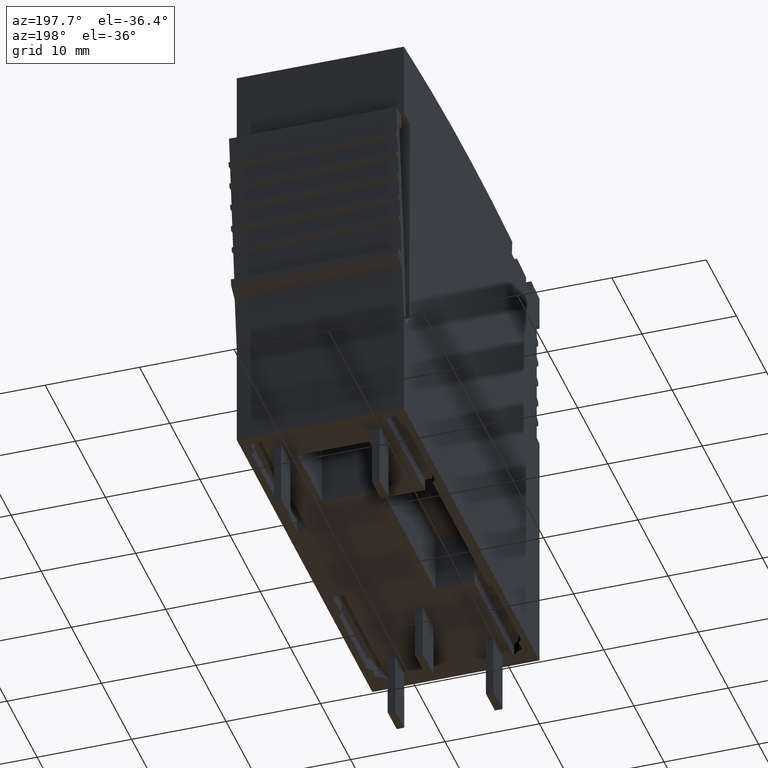
[diagram: clean part render]
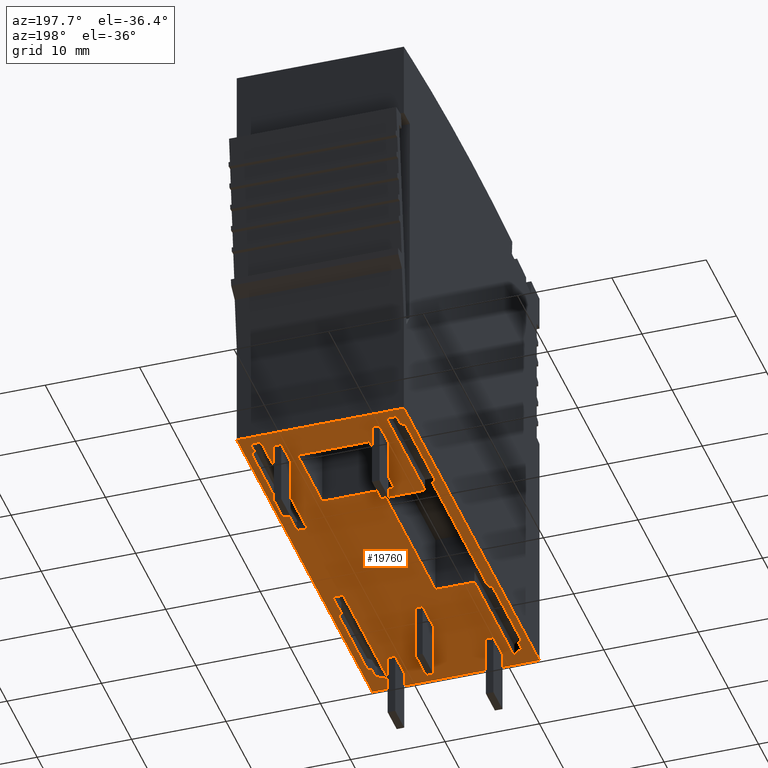
[diagram: same view with one face highlighted and labeled with its STEP entity id]
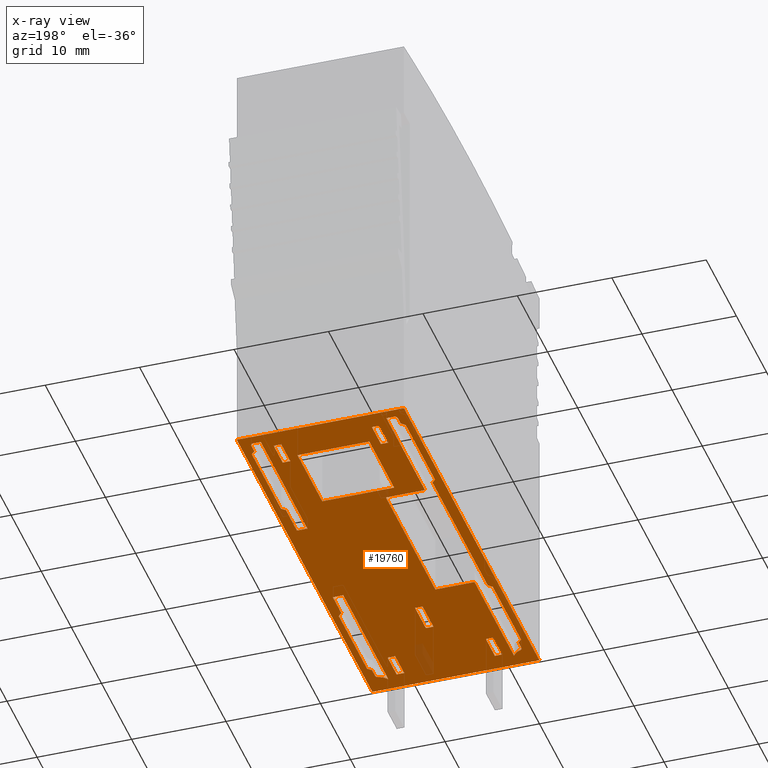
[diagram: x-ray of the same camera — body ghosted, the highlighted face saturated]
A machine part, auxiliary view. The second image highlights one B-rep face of the part: STEP entity #19760.
The next image is the same camera in x-ray: the body ghosted, the highlighted face saturated — about 2% of this face is hidden behind the body in this view.
In plain terms, the highlighted planar face has unit normal (-0, -0, 1).
Its self-contained STEP definition (entity closure, byte-faithful):
#6530=CARTESIAN_POINT('',(166.67605484043,55.3590821823537,
-2.14452701978148));
#6540=VERTEX_POINT('',#6530);
#6570=CARTESIAN_POINT('',(111.23636600137,55.3590821823537,
-2.1445270173443));
#6580=DIRECTION('',(-1.,8.6579770562267E-28,4.39608349722675E-11));
#6590=VECTOR('',#6580,1.);
#6600=LINE('',#6570,#6590);
#6610=CARTESIAN_POINT('',(121.676054891483,55.3590821823537,
-2.14452701780324));
#6620=VERTEX_POINT('',#6610);
#6630=EDGE_CURVE('',#6540,#6620,#6600,.T.);
#14040=CARTESIAN_POINT('',(121.676054890705,55.3590821839099,
-19.8445270201318));
#14050=VERTEX_POINT('',#14040);
#14080=CARTESIAN_POINT('',(111.23636600137,55.3590821839099,
-19.8445270201318));
#14090=DIRECTION('',(1.,-3.86513163182949E-21,-3.76698338563895E-27));
#14100=VECTOR('',#14090,1.);
#14110=LINE('',#14080,#14100);
#14120=CARTESIAN_POINT('',(166.676054839652,55.3590821839099,
-19.8445270201318));
#14130=VERTEX_POINT('',#14120);
#14140=EDGE_CURVE('',#14050,#14130,#14110,.T.);
#14390=CARTESIAN_POINT('',(121.676055138238,55.3590821833076,
-12.9945270190916));
#14400=DIRECTION('',(4.39608349722675E-11,-8.79221417989464E-11,1.));
#14410=VECTOR('',#14400,1.);
#14420=LINE('',#14390,#14410);
#14430=EDGE_CURVE('',#14050,#6620,#14420,.T.);
#14560=CARTESIAN_POINT('',(165.963061093352,55.359082183228,
-12.0886929430308));
#14570=DIRECTION('',(3.86513163182949E-21,1.,8.79221417989464E-11));
#14580=DIRECTION('',(1.,-3.86513163182949E-21,-3.76698338563895E-27));
#14590=AXIS2_PLACEMENT_3D('',#14560,#14570,#14580);
#14600=PLANE('',#14590);
#14610=CARTESIAN_POINT('',(111.23636600137,55.3590821836169,
-16.5945270090846));
#14620=DIRECTION('',(1.,-7.69326545249514E-21,4.39608349722675E-11));
#14630=VECTOR('',#14620,1.);
#14640=LINE('',#14610,#14630);
#14650=CARTESIAN_POINT('',(123.776089819323,55.3590821836242,
-16.5945270085334));
#14660=VERTEX_POINT('',#14650);
#14670=CARTESIAN_POINT('',(126.776089819323,55.3590821836242,
-16.5945270084015));
#14680=VERTEX_POINT('',#14670);
#14690=EDGE_CURVE('',#14660,#14680,#14640,.T.);
#14700=ORIENTED_EDGE('',*,*,#14690,.F.);
#14710=CARTESIAN_POINT('',(126.776089819323,55.3590821833004,
-12.9945270190916));
#14720=DIRECTION('',(3.7666382607192E-27,-8.79221417989464E-11,1.));
#14730=VECTOR('',#14720,1.);
#14740=LINE('',#14710,#14730);
#14750=CARTESIAN_POINT('',(126.776089819323,55.3590821835538,
-15.7945270082354));
#14760=VERTEX_POINT('',#14750);
#14770=EDGE_CURVE('',#14680,#14760,#14740,.T.);
#14780=ORIENTED_EDGE('',*,*,#14770,.F.);
#14790=CARTESIAN_POINT('',(111.23636600137,55.3590821835466,
-15.7945270089185));
#14800=DIRECTION('',(-1.,7.69326545249514E-21,-4.39608349722675E-11));
#14810=VECTOR('',#14800,1.);
#14820=LINE('',#14790,#14810);
#14830=CARTESIAN_POINT('',(123.776089819323,55.3590821835538,
-15.7945270083673));
#14840=VERTEX_POINT('',#14830);
#14850=EDGE_CURVE('',#14760,#14840,#14820,.T.);
#14860=ORIENTED_EDGE('',*,*,#14850,.F.);
#14870=CARTESIAN_POINT('',(123.776089819323,55.3590821833004,
-12.9945270190916));
#14880=DIRECTION('',(3.7666382607192E-27,-8.79221417989464E-11,1.));
#14890=VECTOR('',#14880,1.);
#14900=LINE('',#14870,#14890);
#14910=EDGE_CURVE('',#14660,#14840,#14900,.T.);
#14920=ORIENTED_EDGE('',*,*,#14910,.T.);
#14930=EDGE_LOOP('',(#14920,#14860,#14780,#14700));
#14940=FACE_BOUND('',#14930,.T.);
#14950=CARTESIAN_POINT('',(144.349607348658,55.3590821833076,
-12.9945270190916));
#14960=DIRECTION('',(-0.707106781155467,-6.21703426824798E-11,
0.707106781217628));
#14970=VECTOR('',#14960,1.);
#14980=LINE('',#14950,#14970);
#14990=CARTESIAN_POINT('',(134.599607347522,55.3590821824504,
-3.24452701709825));
#15000=VERTEX_POINT('',#14990);
#15010=CARTESIAN_POINT('',(134.199607289225,55.3590821824152,
-2.84452695876626));
#15020=VERTEX_POINT('',#15010);
#15030=EDGE_CURVE('',#15000,#15020,#14980,.T.);
#15040=ORIENTED_EDGE('',*,*,#15030,.F.);
#15050=CARTESIAN_POINT('',(111.23636600137,55.3590821824152,
-2.84452695775677));
#15060=DIRECTION('',(-1.,5.74645701506574E-27,4.39607794611163E-11));
#15070=VECTOR('',#15060,1.);
#15080=LINE('',#15050,#15070);
#15090=CARTESIAN_POINT('',(124.47605503883,55.3590821824152,
-2.8445269583388));
#15100=VERTEX_POINT('',#15090);
#15110=EDGE_CURVE('',#15020,#15100,#15080,.T.);
#15120=ORIENTED_EDGE('',*,*,#15110,.F.);
#15130=CARTESIAN_POINT('',(111.23636600137,55.3590821835793,
-16.0842159946352));
#15140=DIRECTION('',(-0.707106781217637,6.21703426824798E-11,
-0.707106781155458));
#15150=VECTOR('',#15140,1.);
#15160=LINE('',#15130,#15150);
#15170=CARTESIAN_POINT('',(124.076054980498,55.3590821824504,
-3.24452701663565));
#15180=VERTEX_POINT('',#15170);
#15190=EDGE_CURVE('',#15100,#15180,#15160,.T.);
#15200=ORIENTED_EDGE('',*,*,#15190,.F.);
#15210=CARTESIAN_POINT('',(111.23636600137,55.3590821824504,
-3.2445270160712));
#15220=DIRECTION('',(-1.,-9.40062582959765E-26,4.39619140185016E-11));
#15230=VECTOR('',#15220,1.);
#15240=LINE('',#15210,#15230);
#15250=CARTESIAN_POINT('',(123.07605498092,55.3590821824504,
-3.2445270165917));
#15260=VERTEX_POINT('',#15250);
#15270=EDGE_CURVE('',#15180,#15260,#15240,.T.);
#15280=ORIENTED_EDGE('',*,*,#15270,.F.);
#15290=CARTESIAN_POINT('',(123.076054980907,55.3590821824768,
-3.5445270164652));
#15300=DIRECTION('',(3.86513005014181E-21,1.,8.79221417989464E-11));
#15310=DIRECTION('',(1.,-5.74645701506574E-27,-4.39607794611163E-11));
#15320=AXIS2_PLACEMENT_3D('',#15290,#15300,#15310);
#15330=CIRCLE('',#15320,0.299999999873505);
#15340=CARTESIAN_POINT('',(122.776054981033,55.3590821824768,
-3.54452701645201));
#15350=VERTEX_POINT('',#15340);
#15360=EDGE_CURVE('',#15350,#15260,#15330,.T.);
#15370=ORIENTED_EDGE('',*,*,#15360,.T.);
#15380=CARTESIAN_POINT('',(122.776054980618,55.3590821833076,
-12.9945270190916));
#15390=DIRECTION('',(-4.39607794611163E-11,8.79221417989464E-11,-1.));
#15400=VECTOR('',#15390,1.);
#15410=LINE('',#15380,#15400);
#15420=CARTESIAN_POINT('',(122.776054980998,55.3590821825471,
-4.34452701581131));
#15430=VERTEX_POINT('',#15420);
#15440=EDGE_CURVE('',#15350,#15430,#15410,.T.);
#15450=ORIENTED_EDGE('',*,*,#15440,.F.);
#15460=CARTESIAN_POINT('',(111.23636600137,55.3590821825471,
-4.34452701530403));
#15470=DIRECTION('',(1.,-7.15694028403487E-26,-4.39600308107254E-11));
#15480=VECTOR('',#15470,1.);
#15490=LINE('',#15460,#15480);
#15500=CARTESIAN_POINT('',(135.603098670056,55.3590821825471,
-4.34452701637519));
#15510=VERTEX_POINT('',#15500);
#15520=EDGE_CURVE('',#15430,#15510,#15490,.T.);
#15530=ORIENTED_EDGE('',*,*,#15520,.F.);
#15540=CARTESIAN_POINT('',(135.603098669676,55.3590821833076,
-12.9945270190916));
#15550=DIRECTION('',(-4.39607794611163E-11,8.79221417989464E-11,-1.));
#15560=VECTOR('',#15550,1.);
#15570=LINE('',#15540,#15560);
#15580=CARTESIAN_POINT('',(135.603098669874,55.3590821829114,
-8.48766681348027));
#15590=VERTEX_POINT('',#15580);
#15600=EDGE_CURVE('',#15510,#15590,#15570,.T.);
#15610=ORIENTED_EDGE('',*,*,#15600,.F.);
#15620=CARTESIAN_POINT('',(111.23636600137,55.3590821829114,
-8.48766681240909));
#15630=DIRECTION('',(1.,-5.26471125359321E-27,-4.39607849403477E-11));
#15640=VECTOR('',#15630,1.);
#15650=LINE('',#15620,#15640);
#15660=CARTESIAN_POINT('',(152.008433673002,55.3590821829114,
-8.48766681420146));
#15670=VERTEX_POINT('',#15660);
#15680=EDGE_CURVE('',#15590,#15670,#15650,.T.);
#15690=ORIENTED_EDGE('',*,*,#15680,.F.);
#15700=CARTESIAN_POINT('',(152.008433672804,55.3590821833076,
-12.9945270190916));
#15710=DIRECTION('',(4.39607794611163E-11,-8.79221417989464E-11,1.));
#15720=VECTOR('',#15710,1.);
#15730=LINE('',#15700,#15720);
#15740=CARTESIAN_POINT('',(152.008433673185,55.3590821825471,
-4.34452701709637));
#15750=VERTEX_POINT('',#15740);
#15760=EDGE_CURVE('',#15670,#15750,#15730,.T.);
#15770=ORIENTED_EDGE('',*,*,#15760,.F.);
#15780=CARTESIAN_POINT('',(111.23636600137,55.3590821825471,
-4.34452701530403));
#15790=DIRECTION('',(1.,-7.15694028403487E-26,-4.39600308107254E-11));
#15800=VECTOR('',#15790,1.);
#15810=LINE('',#15780,#15800);
#15820=CARTESIAN_POINT('',(165.152221556358,55.3590821825471,
-4.34452701767417));
#15830=VERTEX_POINT('',#15820);
#15840=EDGE_CURVE('',#15750,#15830,#15810,.T.);
#15850=ORIENTED_EDGE('',*,*,#15840,.F.);
#15860=CARTESIAN_POINT('',(165.84908955327,55.3590821824328,
-3.04452702034931));
#15870=DIRECTION('',(3.86513005014181E-21,1.,8.79221417989464E-11));
#15880=DIRECTION('',(4.39607794611163E-11,-8.79221417989464E-11,1.));
#15890=AXIS2_PLACEMENT_3D('',#15860,#15870,#15880);
#15900=CIRCLE('',#15890,1.47499999937807);
#15910=CARTESIAN_POINT('',(164.433819048503,55.3590821824694,
-3.46001997636847));
#15920=VERTEX_POINT('',#15910);
#15930=EDGE_CURVE('',#15830,#15920,#15900,.T.);
#15940=ORIENTED_EDGE('',*,*,#15930,.F.);
#15950=CARTESIAN_POINT('',(164.145967420415,55.3590821824768,
-3.54452701827067));
#15960=DIRECTION('',(3.86513005014181E-21,1.,8.79221417989464E-11));
#15970=DIRECTION('',(1.,-5.74645701506574E-27,-4.39607794611163E-11));
#15980=AXIS2_PLACEMENT_3D('',#15950,#15960,#15970);
#15990=CIRCLE('',#15980,0.299999999873505);
#16000=CARTESIAN_POINT('',(164.145967420428,55.3590821824504,
-3.24452701839717));
#16010=VERTEX_POINT('',#16000);
#16020=EDGE_CURVE('',#16010,#15920,#15990,.T.);
#16030=ORIENTED_EDGE('',*,*,#16020,.T.);
#16040=CARTESIAN_POINT('',(111.23636600137,55.3590821824504,
-3.24452701607117));
#16050=DIRECTION('',(-1.,-9.40062582959765E-26,4.39619140185016E-11));
#16060=VECTOR('',#16050,1.);
#16070=LINE('',#16040,#16060);
#16080=CARTESIAN_POINT('',(163.145967420847,55.3590821824504,
-3.24452701835321));
#16090=VERTEX_POINT('',#16080);
#16100=EDGE_CURVE('',#16010,#16090,#16070,.T.);
#16110=ORIENTED_EDGE('',*,*,#16100,.F.);
#16120=CARTESIAN_POINT('',(172.895967420728,55.3590821833076,
-12.9945270190916));
#16130=DIRECTION('',(-0.707106781155467,-6.21703426824798E-11,
0.707106781217628));
#16140=VECTOR('',#16130,1.);
#16150=LINE('',#16120,#16140);
#16160=CARTESIAN_POINT('',(162.745967421033,55.3590821824152,
-2.84452701850423));
#16170=VERTEX_POINT('',#16160);
#16180=EDGE_CURVE('',#16090,#16170,#16150,.T.);
#16190=ORIENTED_EDGE('',*,*,#16180,.F.);
#16200=CARTESIAN_POINT('',(111.23636600137,55.3590821824152,
-2.84452701623983));
#16210=DIRECTION('',(-1.,5.74645701506574E-27,4.39607794611163E-11));
#16220=VECTOR('',#16210,1.);
#16230=LINE('',#16200,#16220);
#16240=CARTESIAN_POINT('',(153.351243109778,55.3590821824152,
-2.84452701809123));
#16250=VERTEX_POINT('',#16240);
#16260=EDGE_CURVE('',#16170,#16250,#16230,.T.);
#16270=ORIENTED_EDGE('',*,*,#16260,.F.);
#16280=CARTESIAN_POINT('',(111.23636600137,55.3590821861181,
-44.9594041227958));
#16290=DIRECTION('',(-0.707106781217637,6.21703426824798E-11,
-0.707106781155458));
#16300=VECTOR('',#16290,1.);
#16310=LINE('',#16280,#16300);
#16320=CARTESIAN_POINT('',(152.951243109929,55.3590821824504,
-3.244527017905));
#16330=VERTEX_POINT('',#16320);
#16340=EDGE_CURVE('',#16250,#16330,#16310,.T.);
#16350=ORIENTED_EDGE('',*,*,#16340,.F.);
#16360=CARTESIAN_POINT('',(111.23636600137,55.3590821824504,
-3.24452701607117));
#16370=DIRECTION('',(-1.,-9.40062582959765E-26,4.39619140185016E-11));
#16380=VECTOR('',#16370,1.);
#16390=LINE('',#16360,#16380);
#16400=EDGE_CURVE('',#16330,#15000,#16390,.T.);
#16410=ORIENTED_EDGE('',*,*,#16400,.F.);
#16420=EDGE_LOOP('',(#16410,#16350,#16270,#16190,#16110,#16030,#15940,
#15850,#15770,#15690,#15610,#15530,#15450,#15370,#15280,#15200,#15120,
#15040));
#16430=FACE_BOUND('',#16420,.T.);
#16440=CARTESIAN_POINT('',(111.23636600137,55.3590821838132,
-18.7445270095439));
#16450=DIRECTION('',(1.,-2.69811504632582E-23,-4.36539693282612E-11));
#16460=VECTOR('',#16450,1.);
#16470=LINE('',#16440,#16460);
#16480=CARTESIAN_POINT('',(150.126054642121,55.3590821838132,
-18.7445270112416));
#16490=VERTEX_POINT('',#16480);
#16500=CARTESIAN_POINT('',(152.951203198138,55.3590821838132,
-18.744527011365));
#16510=VERTEX_POINT('',#16500);
#16520=EDGE_CURVE('',#16490,#16510,#16470,.T.);
#16530=ORIENTED_EDGE('',*,*,#16520,.F.);
#16540=CARTESIAN_POINT('',(147.20120320637,55.3590821833076,
-12.9945270190916));
#16550=DIRECTION('',(0.707106781155467,6.21703426824798E-11,
-0.707106781217628));
#16560=VECTOR('',#16550,1.);
#16570=LINE('',#16540,#16560);
#16580=CARTESIAN_POINT('',(153.351203197956,55.3590821838484,
-19.1445270112183));
#16590=VERTEX_POINT('',#16580);
#16600=EDGE_CURVE('',#16510,#16590,#16570,.T.);
#16610=ORIENTED_EDGE('',*,*,#16600,.F.);
#16620=CARTESIAN_POINT('',(111.23636600137,55.3590821838484,
-19.1445270093669));
#16630=DIRECTION('',(1.,-5.74645701506574E-27,-4.39607794611163E-11));
#16640=VECTOR('',#16630,1.);
#16650=LINE('',#16620,#16640);
#16660=CARTESIAN_POINT('',(162.745967420317,55.3590821838484,
-19.1445270116313));
#16670=VERTEX_POINT('',#16660);
#16680=EDGE_CURVE('',#16590,#16670,#16650,.T.);
#16690=ORIENTED_EDGE('',*,*,#16680,.F.);
#16700=CARTESIAN_POINT('',(111.23636600137,55.3590821883772,
-70.6541284260488));
#16710=DIRECTION('',(0.707106781217637,-6.21703426824798E-11,
0.707106781155458));
#16720=VECTOR('',#16710,1.);
#16730=LINE('',#16700,#16720);
#16740=CARTESIAN_POINT('',(163.145967420165,55.3590821838132,
-18.7445270118179));
#16750=VERTEX_POINT('',#16740);
#16760=EDGE_CURVE('',#16670,#16750,#16730,.T.);
#16770=ORIENTED_EDGE('',*,*,#16760,.F.);
#16780=CARTESIAN_POINT('',(111.23636600137,55.3590821838132,
-18.7445270095519));
#16790=DIRECTION('',(1.,-2.69811504632582E-23,-4.36539693282612E-11));
#16800=VECTOR('',#16790,1.);
#16810=LINE('',#16780,#16800);
#16820=CARTESIAN_POINT('',(164.145967419744,55.3590821838132,
-18.7445270118616));
#16830=VERTEX_POINT('',#16820);
#16840=EDGE_CURVE('',#16750,#16830,#16810,.T.);
#16850=ORIENTED_EDGE('',*,*,#16840,.F.);
#16860=CARTESIAN_POINT('',(164.145967419757,55.3590821837868,
-18.4445270119881));
#16870=DIRECTION('',(3.86513005014181E-21,1.,8.79221417989464E-11));
#16880=DIRECTION('',(1.,-5.74645701506574E-27,-4.39607794611163E-11));
#16890=AXIS2_PLACEMENT_3D('',#16860,#16870,#16880);
#16900=CIRCLE('',#16890,0.299999999873505);
#16910=CARTESIAN_POINT('',(164.433819047838,55.3590821837943,
-18.529034053914));
#16920=VERTEX_POINT('',#16910);
#16930=EDGE_CURVE('',#16920,#16830,#16900,.T.);
#16940=ORIENTED_EDGE('',*,*,#16930,.T.);
#16950=CARTESIAN_POINT('',(165.849089552571,55.3590821838308,
-18.9445270100496));
#16960=DIRECTION('',(3.86513005014181E-21,1.,8.79221417989464E-11));
#16970=DIRECTION('',(1.,-5.74645701506574E-27,-4.39607794611163E-11));
#16980=AXIS2_PLACEMENT_3D('',#16950,#16960,#16970);
#16990=CIRCLE('',#16980,1.47499999937807);
#17000=CARTESIAN_POINT('',(165.152477627168,55.3590821837165,
-17.6443897774656));
#17010=VERTEX_POINT('',#17000);
#17020=EDGE_CURVE('',#16920,#17010,#16990,.T.);
#17030=ORIENTED_EDGE('',*,*,#17020,.F.);
#17040=CARTESIAN_POINT('',(111.23636600137,55.3590821837165,
-17.6443897750954));
#17050=DIRECTION('',(-1.,6.89122670455866E-27,4.39607664408501E-11));
#17060=VECTOR('',#17050,1.);
#17070=LINE('',#17040,#17060);
#17080=CARTESIAN_POINT('',(150.12605464217,55.3590821837165,
-17.644389776805));
#17090=VERTEX_POINT('',#17080);
#17100=EDGE_CURVE('',#17010,#17090,#17070,.T.);
#17110=ORIENTED_EDGE('',*,*,#17100,.F.);
#17120=CARTESIAN_POINT('',(150.126054642374,55.3590821833076,
-12.9945270190916));
#17130=DIRECTION('',(-4.39607794611163E-11,8.79221417989464E-11,-1.));
#17140=VECTOR('',#17130,1.);
#17150=LINE('',#17120,#17140);
#17160=EDGE_CURVE('',#17090,#16490,#17150,.T.);
#17170=ORIENTED_EDGE('',*,*,#17160,.F.);
#17180=EDGE_LOOP('',(#17170,#17110,#17030,#16940,#16850,#16770,#16690,
#16610,#16530));
#17190=FACE_BOUND('',#17180,.T.);
#17200=CARTESIAN_POINT('',(123.076054980891,55.3590821837868,
-18.4445270101826));
#17210=DIRECTION('',(3.86513005014181E-21,1.,8.79221417989464E-11));
#17220=DIRECTION('',(1.,-5.74645701506574E-27,-4.39607794611163E-11));
#17230=AXIS2_PLACEMENT_3D('',#17200,#17210,#17220);
#17240=CIRCLE('',#17230,0.299999999873505);
#17250=CARTESIAN_POINT('',(123.076054980878,55.3590821838132,
-18.7445270100608));
#17260=VERTEX_POINT('',#17250);
#17270=CARTESIAN_POINT('',(122.776054981018,55.3590821837868,
-18.4445270101694));
#17280=VERTEX_POINT('',#17270);
#17290=EDGE_CURVE('',#17260,#17280,#17240,.T.);
#17300=ORIENTED_EDGE('',*,*,#17290,.T.);
#17310=CARTESIAN_POINT('',(111.23636600137,55.3590821838132,
-18.7445270095439));
#17320=DIRECTION('',(1.,-2.69811504632582E-23,-4.36539693282612E-11));
#17330=VECTOR('',#17320,1.);
#17340=LINE('',#17310,#17330);
#17350=CARTESIAN_POINT('',(124.076054980461,55.3590821838132,
-18.7445270101044));
#17360=VERTEX_POINT('',#17350);
#17370=EDGE_CURVE('',#17260,#17360,#17340,.T.);
#17380=ORIENTED_EDGE('',*,*,#17370,.F.);
#17390=CARTESIAN_POINT('',(118.326054989954,55.3590821833076,
-12.9945270190916));
#17400=DIRECTION('',(0.707106781155467,6.21703426824798E-11,
-0.707106781217628));
#17410=VECTOR('',#17400,1.);
#17420=LINE('',#17390,#17410);
#17430=CARTESIAN_POINT('',(124.47605498027,55.3590821838484,
-19.144527009949));
#17440=VERTEX_POINT('',#17430);
#17450=EDGE_CURVE('',#17360,#17440,#17420,.T.);
#17460=ORIENTED_EDGE('',*,*,#17450,.F.);
#17470=CARTESIAN_POINT('',(111.23636600137,55.3590821838484,
-19.144527009367));
#17480=DIRECTION('',(1.,-5.74645701506574E-27,-4.39607794611163E-11));
#17490=VECTOR('',#17480,1.);
#17500=LINE('',#17470,#17490);
#17510=CARTESIAN_POINT('',(134.199606060165,55.3590821838484,
-19.1445270103765));
#17520=VERTEX_POINT('',#17510);
#17530=EDGE_CURVE('',#17440,#17520,#17500,.T.);
#17540=ORIENTED_EDGE('',*,*,#17530,.F.);
#17550=CARTESIAN_POINT('',(111.23636600137,55.3590821858673,
-42.1077670671529));
#17560=DIRECTION('',(0.707106781217637,-6.21703426824798E-11,
0.707106781155458));
#17570=VECTOR('',#17560,1.);
#17580=LINE('',#17550,#17570);
#17590=CARTESIAN_POINT('',(134.599606060013,55.3590821838132,
-18.7445270105638));
#17600=VERTEX_POINT('',#17590);
#17610=EDGE_CURVE('',#17520,#17600,#17580,.T.);
#17620=ORIENTED_EDGE('',*,*,#17610,.F.);
#17630=CARTESIAN_POINT('',(111.23636600137,55.3590821838132,
-18.7445270095439));
#17640=DIRECTION('',(1.,-2.69811504632582E-23,-4.36539693282612E-11));
#17650=VECTOR('',#17640,1.);
#17660=LINE('',#17630,#17650);
#17670=CARTESIAN_POINT('',(138.226054615697,55.3590821838132,
-18.7445270107221));
#17680=VERTEX_POINT('',#17670);
#17690=EDGE_CURVE('',#17600,#17680,#17660,.T.);
#17700=ORIENTED_EDGE('',*,*,#17690,.F.);
#17710=CARTESIAN_POINT('',(138.22605461595,55.3590821833076,
-12.9945270190916));
#17720=DIRECTION('',(4.39607794611163E-11,-8.79221417989464E-11,1.));
#17730=VECTOR('',#17720,1.);
#17740=LINE('',#17710,#17730);
#17750=CARTESIAN_POINT('',(138.226054615745,55.3590821837165,
-17.6443897762819));
#17760=VERTEX_POINT('',#17750);
#17770=EDGE_CURVE('',#17680,#17760,#17740,.T.);
#17780=ORIENTED_EDGE('',*,*,#17770,.F.);
#17790=CARTESIAN_POINT('',(111.23636600137,55.3590821837165,
-17.6443897750954));
#17800=DIRECTION('',(-1.,5.74645701506574E-27,4.39607794611163E-11));
#17810=VECTOR('',#17800,1.);
#17820=LINE('',#17790,#17810);
#17830=CARTESIAN_POINT('',(122.776054981053,55.3590821837165,
-17.6443897756027));
#17840=VERTEX_POINT('',#17830);
#17850=EDGE_CURVE('',#17760,#17840,#17820,.T.);
#17860=ORIENTED_EDGE('',*,*,#17850,.F.);
#17870=CARTESIAN_POINT('',(122.776054981258,55.3590821833076,
-12.9945270190916));
#17880=DIRECTION('',(-4.39607794611163E-11,8.79221417989464E-11,-1.));
#17890=VECTOR('',#17880,1.);
#17900=LINE('',#17870,#17890);
#17910=EDGE_CURVE('',#17840,#17280,#17900,.T.);
#17920=ORIENTED_EDGE('',*,*,#17910,.F.);
#17930=EDGE_LOOP('',(#17920,#17860,#17780,#17700,#17620,#17540,#17460,
#17380,#17300));
#17940=FACE_BOUND('',#17930,.T.);
#17950=CARTESIAN_POINT('',(111.23636600137,55.3590821827025,
-6.1945270117791));
#17960=DIRECTION('',(1.,-7.69326545249514E-21,4.39608349722675E-11));
#17970=VECTOR('',#17960,1.);
#17980=LINE('',#17950,#17970);
#17990=CARTESIAN_POINT('',(123.776089819359,55.3590821827098,
-6.19452701122785));
#18000=VERTEX_POINT('',#17990);
#18010=CARTESIAN_POINT('',(126.776089819359,55.3590821827098,
-6.19452701109596));
#18020=VERTEX_POINT('',#18010);
#18030=EDGE_CURVE('',#18000,#18020,#17980,.T.);
#18040=ORIENTED_EDGE('',*,*,#18030,.F.);
#18050=CARTESIAN_POINT('',(126.776089819359,55.3590821833004,
-12.9945270190916));
#18060=DIRECTION('',(3.7666382607192E-27,-8.79221417989464E-11,1.));
#18070=VECTOR('',#18060,1.);
#18080=LINE('',#18050,#18070);
#18090=CARTESIAN_POINT('',(126.776089819359,55.3590821826394,
-5.39452701092987));
#18100=VERTEX_POINT('',#18090);
#18110=EDGE_CURVE('',#18020,#18100,#18080,.T.);
#18120=ORIENTED_EDGE('',*,*,#18110,.F.);
#18130=CARTESIAN_POINT('',(111.23636600137,55.3590821826322,
-5.39452701161301));
#18140=DIRECTION('',(-1.,7.69326545249514E-21,-4.39608349722675E-11));
#18150=VECTOR('',#18140,1.);
#18160=LINE('',#18130,#18150);
#18170=CARTESIAN_POINT('',(123.776089819359,55.3590821826394,
-5.39452701106176));
#18180=VERTEX_POINT('',#18170);
#18190=EDGE_CURVE('',#18100,#18180,#18160,.T.);
#18200=ORIENTED_EDGE('',*,*,#18190,.F.);
#18210=CARTESIAN_POINT('',(123.776089819359,55.3590821833004,
-12.9945270190916));
#18220=DIRECTION('',(3.7666382607192E-27,-8.79221417989464E-11,1.));
#18230=VECTOR('',#18220,1.);
#18240=LINE('',#18210,#18230);
#18250=EDGE_CURVE('',#18000,#18180,#18240,.T.);
#18260=ORIENTED_EDGE('',*,*,#18250,.T.);
#18270=EDGE_LOOP('',(#18260,#18200,#18120,#18040));
#18280=FACE_BOUND('',#18270,.T.);
#18290=CARTESIAN_POINT('',(111.23636600137,55.3590821827025,
-6.1945270122662));
#18300=DIRECTION('',(1.,-7.69326545249514E-21,4.39608349722675E-11));
#18310=VECTOR('',#18300,1.);
#18320=LINE('',#18290,#18310);
#18330=CARTESIAN_POINT('',(161.576089852729,55.3590821827098,
-6.19452701005322));
#18340=VERTEX_POINT('',#18330);
#18350=CARTESIAN_POINT('',(164.576089852729,55.3590821827098,
-6.19452700992134));
#18360=VERTEX_POINT('',#18350);
#18370=EDGE_CURVE('',#18340,#18360,#18320,.T.);
#18380=ORIENTED_EDGE('',*,*,#18370,.F.);
#18390=CARTESIAN_POINT('',(164.576089852729,55.3590821833004,
-12.9945270190916));
#18400=DIRECTION('',(3.7666382607192E-27,-8.79221417989464E-11,1.));
#18410=VECTOR('',#18400,1.);
#18420=LINE('',#18390,#18410);
#18430=CARTESIAN_POINT('',(164.576089852729,55.3590821826394,
-5.39452701026867));
#18440=VERTEX_POINT('',#18430);
#18450=EDGE_CURVE('',#18360,#18440,#18420,.T.);
#18460=ORIENTED_EDGE('',*,*,#18450,.F.);
#18470=CARTESIAN_POINT('',(111.23636600137,55.3590821826322,
-5.39452701210011));
#18480=DIRECTION('',(-1.,7.69326545249514E-21,-4.39608349722675E-11));
#18490=VECTOR('',#18480,1.);
#18500=LINE('',#18470,#18490);
#18510=CARTESIAN_POINT('',(161.576089852729,55.3590821826394,
-5.39452700988713));
#18520=VERTEX_POINT('',#18510);
#18530=EDGE_CURVE('',#18440,#18520,#18500,.T.);
#18540=ORIENTED_EDGE('',*,*,#18530,.F.);
#18550=CARTESIAN_POINT('',(161.576089852729,55.3590821833004,
-12.9945270190916));
#18560=DIRECTION('',(3.7666382607192E-27,-8.79221417989464E-11,1.));
#18570=VECTOR('',#18560,1.);
#18580=LINE('',#18550,#18570);
#18590=EDGE_CURVE('',#18340,#18520,#18580,.T.);
#18600=ORIENTED_EDGE('',*,*,#18590,.T.);
#18610=EDGE_LOOP('',(#18600,#18540,#18460,#18380));
#18620=FACE_BOUND('',#18610,.T.);
#18630=CARTESIAN_POINT('',(111.23636600137,55.3590821835466,
-15.7945270111964));
#18640=DIRECTION('',(-1.,7.69326545249514E-21,-4.39608349722675E-11));
#18650=VECTOR('',#18640,1.);
#18660=LINE('',#18630,#18650);
#18670=CARTESIAN_POINT('',(164.576089852668,55.3590821835538,
-15.7945270088515));
#18680=VERTEX_POINT('',#18670);
#18690=CARTESIAN_POINT('',(161.576089852668,55.3590821835538,
-15.7945270089834));
#18700=VERTEX_POINT('',#18690);
#18710=EDGE_CURVE('',#18680,#18700,#18660,.T.);
#18720=ORIENTED_EDGE('',*,*,#18710,.F.);
#18730=CARTESIAN_POINT('',(161.576089852668,55.3590821833004,
-12.9945270190916));
#18740=DIRECTION('',(3.7666382607192E-27,-8.79221417989464E-11,1.));
#18750=VECTOR('',#18740,1.);
#18760=LINE('',#18730,#18750);
#18770=CARTESIAN_POINT('',(161.576089852668,55.3590821836242,
-16.5945270091495));
#18780=VERTEX_POINT('',#18770);
#18790=EDGE_CURVE('',#18780,#18700,#18760,.T.);
#18800=ORIENTED_EDGE('',*,*,#18790,.T.);
#18810=CARTESIAN_POINT('',(111.23636600137,55.3590821836169,
-16.5945270113625));
#18820=DIRECTION('',(1.,-7.69326545249514E-21,4.39608349722675E-11));
#18830=VECTOR('',#18820,1.);
#18840=LINE('',#18810,#18830);
#18850=CARTESIAN_POINT('',(164.576089852668,55.3590821836242,
-16.5945270090176));
#18860=VERTEX_POINT('',#18850);
#18870=EDGE_CURVE('',#18780,#18860,#18840,.T.);
#18880=ORIENTED_EDGE('',*,*,#18870,.F.);
#18890=CARTESIAN_POINT('',(164.576089852668,55.3590821833004,
-12.9945270190916));
#18900=DIRECTION('',(3.7666382607192E-27,-8.79221417989464E-11,1.));
#18910=VECTOR('',#18900,1.);
#18920=LINE('',#18890,#18910);
#18930=EDGE_CURVE('',#18860,#18680,#18920,.T.);
#18940=ORIENTED_EDGE('',*,*,#18930,.F.);
#18950=EDGE_LOOP('',(#18940,#18880,#18800,#18720));
#18960=FACE_BOUND('',#18950,.T.);
#18970=CARTESIAN_POINT('',(111.23636600137,55.3590821834663,
-14.7992574014195));
#18980=DIRECTION('',(1.,-3.86513163182949E-21,-3.76698338563895E-27));
#18990=VECTOR('',#18980,1.);
#19000=LINE('',#18970,#18990);
#19010=CARTESIAN_POINT('',(126.044359180085,55.3590821834663,
-14.7992574014195));
#19020=VERTEX_POINT('',#19010);
#19030=CARTESIAN_POINT('',(134.253819956097,55.3590821834663,
-14.7992574014195));
#19040=VERTEX_POINT('',#19030);
#19050=EDGE_CURVE('',#19020,#19040,#19000,.T.);
#19060=ORIENTED_EDGE('',*,*,#19050,.F.);
#19070=CARTESIAN_POINT('',(134.253819956097,55.3590821833076,
-12.9945270190916));
#19080=DIRECTION('',(3.7666382607192E-27,-8.79221417989464E-11,1.));
#19090=VECTOR('',#19080,1.);
#19100=LINE('',#19070,#19090);
#19110=CARTESIAN_POINT('',(134.253819956097,55.3590821827973,
-7.18979662585008));
#19120=VERTEX_POINT('',#19110);
#19130=EDGE_CURVE('',#19040,#19120,#19100,.T.);
#19140=ORIENTED_EDGE('',*,*,#19130,.F.);
#19150=CARTESIAN_POINT('',(111.23636600137,55.3590821827973,
-7.18979662585008));
#19160=DIRECTION('',(-1.,3.86513163182949E-21,3.76698338563895E-27));
#19170=VECTOR('',#19160,1.);
#19180=LINE('',#19150,#19170);
#19190=CARTESIAN_POINT('',(126.044359180085,55.3590821827973,
-7.18979662585008));
#19200=VERTEX_POINT('',#19190);
#19210=EDGE_CURVE('',#19120,#19200,#19180,.T.);
#19220=ORIENTED_EDGE('',*,*,#19210,.F.);
#19230=CARTESIAN_POINT('',(126.044359180085,55.3590821833076,
-12.9945270190916));
#19240=DIRECTION('',(-3.7666382607192E-27,8.79221417989464E-11,-1.));
#19250=VECTOR('',#19240,1.);
#19260=LINE('',#19230,#19250);
#19270=EDGE_CURVE('',#19200,#19020,#19260,.T.);
#19280=ORIENTED_EDGE('',*,*,#19270,.F.);
#19290=EDGE_LOOP('',(#19280,#19220,#19140,#19060));
#19300=FACE_BOUND('',#19290,.T.);
#19310=CARTESIAN_POINT('',(111.23636600137,55.3590821831597,
-11.3945269923349));
#19320=DIRECTION('',(1.,-7.69326545249514E-21,4.39608349722675E-11));
#19330=VECTOR('',#19320,1.);
#19340=LINE('',#19310,#19330);
#19350=CARTESIAN_POINT('',(154.376054936786,55.359082183167,
-11.3945269904384));
#19360=VERTEX_POINT('',#19350);
#19370=CARTESIAN_POINT('',(157.976054936906,55.359082183167,
-11.3945269902802));
#19380=VERTEX_POINT('',#19370);
#19390=EDGE_CURVE('',#19360,#19380,#19340,.T.);
#19400=ORIENTED_EDGE('',*,*,#19390,.F.);
#19410=CARTESIAN_POINT('',(157.976054936906,55.3590821833004,
-12.9945270190916));
#19420=DIRECTION('',(3.7666382607192E-27,-8.79221417989464E-11,1.));
#19430=VECTOR('',#19420,1.);
#19440=LINE('',#19410,#19430);
#19450=CARTESIAN_POINT('',(157.976054936906,55.3590821830966,
-10.5945269901141));
#19460=VERTEX_POINT('',#19450);
#19470=EDGE_CURVE('',#19380,#19460,#19440,.T.);
#19480=ORIENTED_EDGE('',*,*,#19470,.F.);
#19490=CARTESIAN_POINT('',(111.23636600137,55.3590821830894,
-10.5945269921688));
#19500=DIRECTION('',(-1.,7.69326545249514E-21,-4.39608349722675E-11));
#19510=VECTOR('',#19500,1.);
#19520=LINE('',#19490,#19510);
#19530=CARTESIAN_POINT('',(154.376054936786,55.3590821830966,
-10.5945269902723));
#19540=VERTEX_POINT('',#19530);
#19550=EDGE_CURVE('',#19460,#19540,#19520,.T.);
#19560=ORIENTED_EDGE('',*,*,#19550,.F.);
#19570=CARTESIAN_POINT('',(154.376054936786,55.3590821833004,
-12.9945270190916));
#19580=DIRECTION('',(3.7666382607192E-27,-8.79221417989464E-11,1.));
#19590=VECTOR('',#19580,1.);
#19600=LINE('',#19570,#19590);
#19610=EDGE_CURVE('',#19360,#19540,#19600,.T.);
#19620=ORIENTED_EDGE('',*,*,#19610,.T.);
#19630=EDGE_LOOP('',(#19620,#19560,#19480,#19400));
#19640=FACE_BOUND('',#19630,.T.);
#19650=ORIENTED_EDGE('',*,*,#6630,.T.);
#19660=CARTESIAN_POINT('',(166.676054839953,55.3590821833076,
-12.9945270190916));
#19670=DIRECTION('',(4.39608349722675E-11,-8.79221417989464E-11,1.));
#19680=VECTOR('',#19670,1.);
#19690=LINE('',#19660,#19680);
#19700=EDGE_CURVE('',#14130,#6540,#19690,.T.);
#19710=ORIENTED_EDGE('',*,*,#19700,.T.);
#19720=ORIENTED_EDGE('',*,*,#14140,.T.);
#19730=ORIENTED_EDGE('',*,*,#14430,.F.);
#19740=EDGE_LOOP('',(#19730,#19720,#19710,#19650));
#19750=FACE_OUTER_BOUND('',#19740,.T.);
#19760=ADVANCED_FACE('',(#14940,#16430,#17190,#17940,#18280,#18620,
#18960,#19300,#19640,#19750),#14600,.F.);